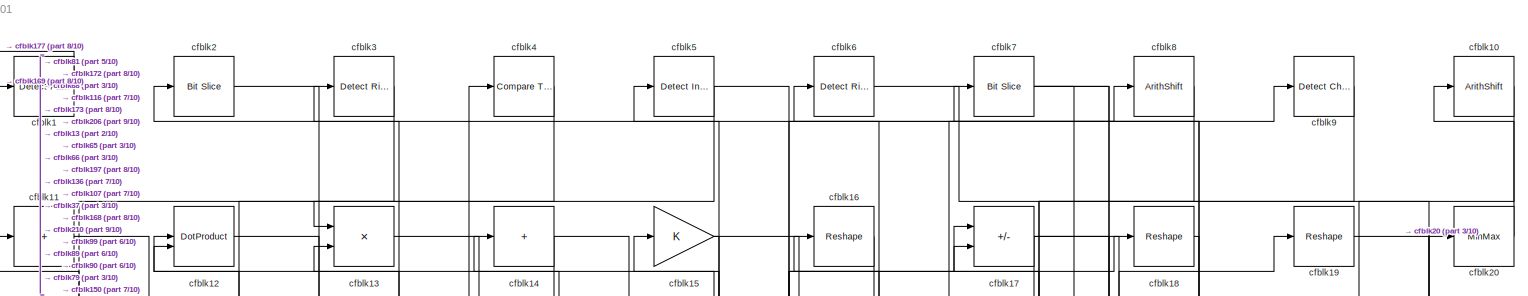
[diagram: root canvas - part 1/10, full width, top band]
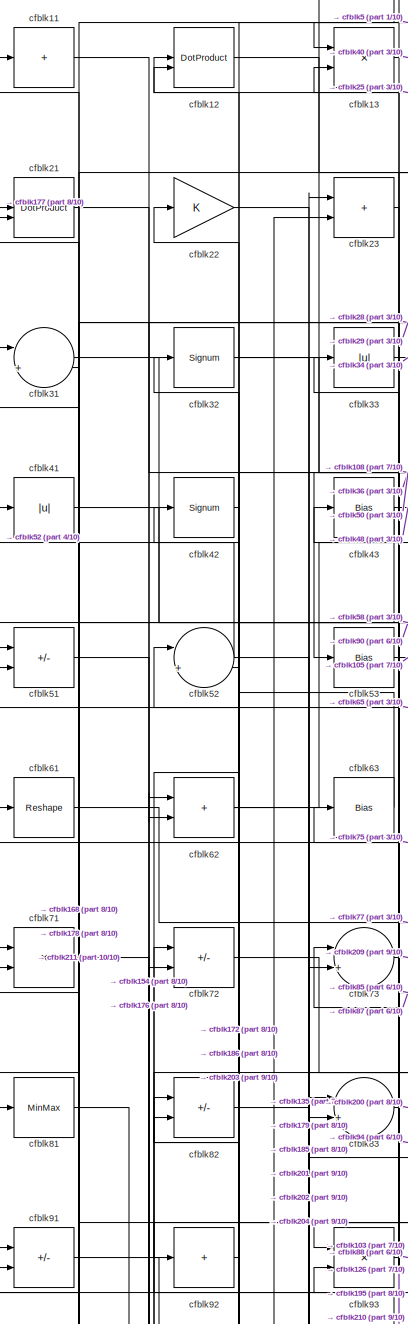
[diagram: root canvas - part 2/10, top left region]
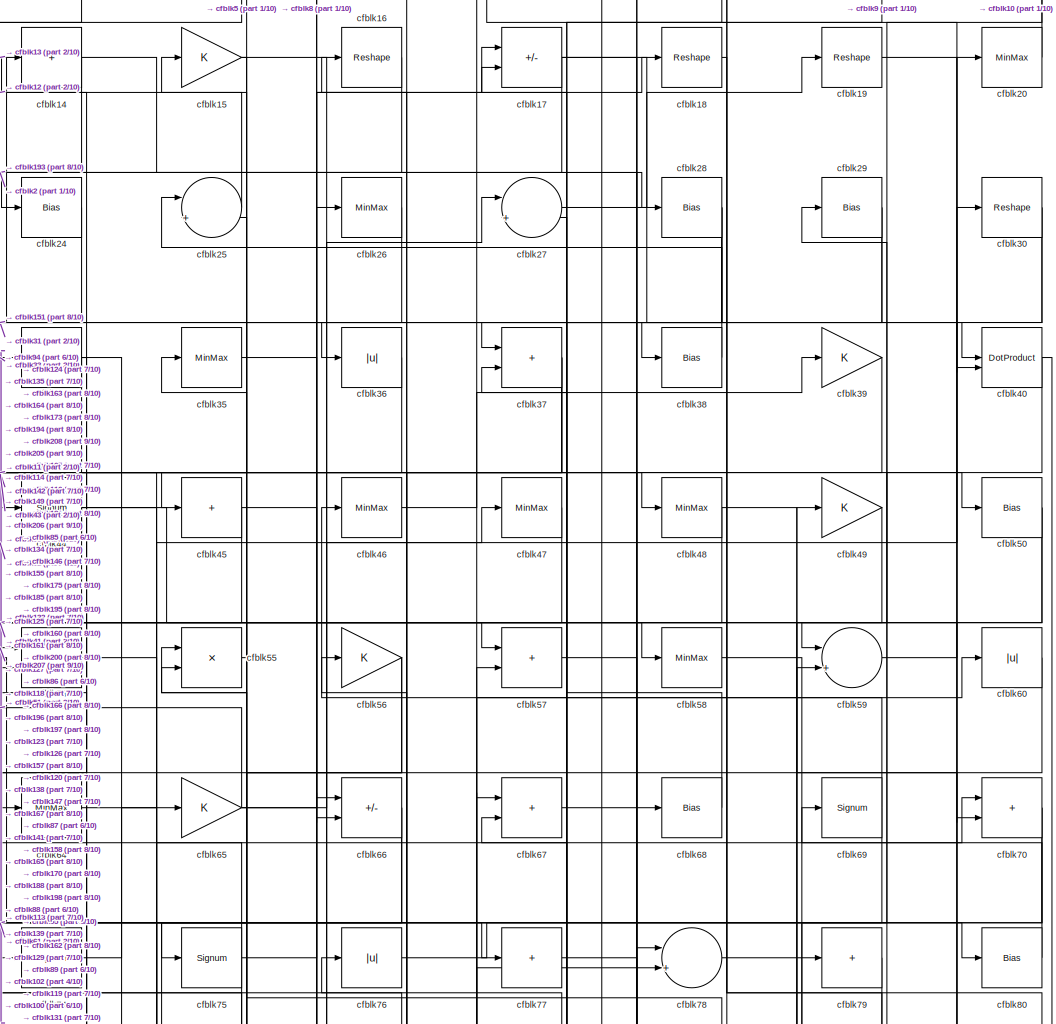
[diagram: root canvas - part 3/10, top center region]
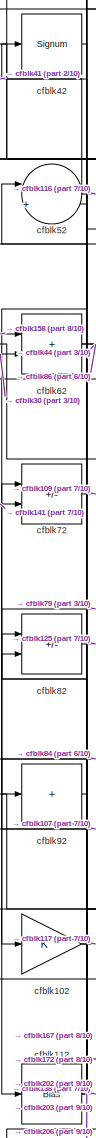
[diagram: root canvas - part 4/10, middle left region]
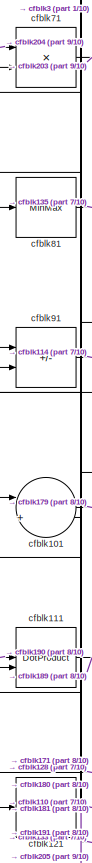
[diagram: root canvas - part 5/10, middle left region]
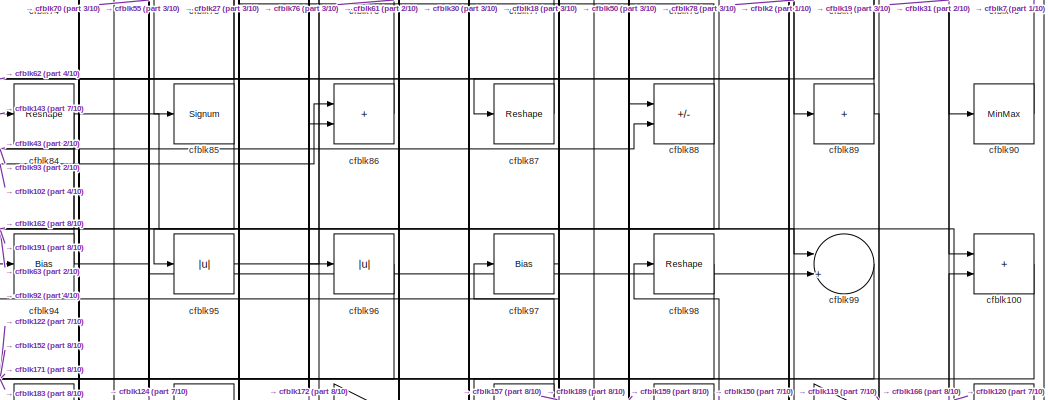
[diagram: root canvas - part 6/10, central region]
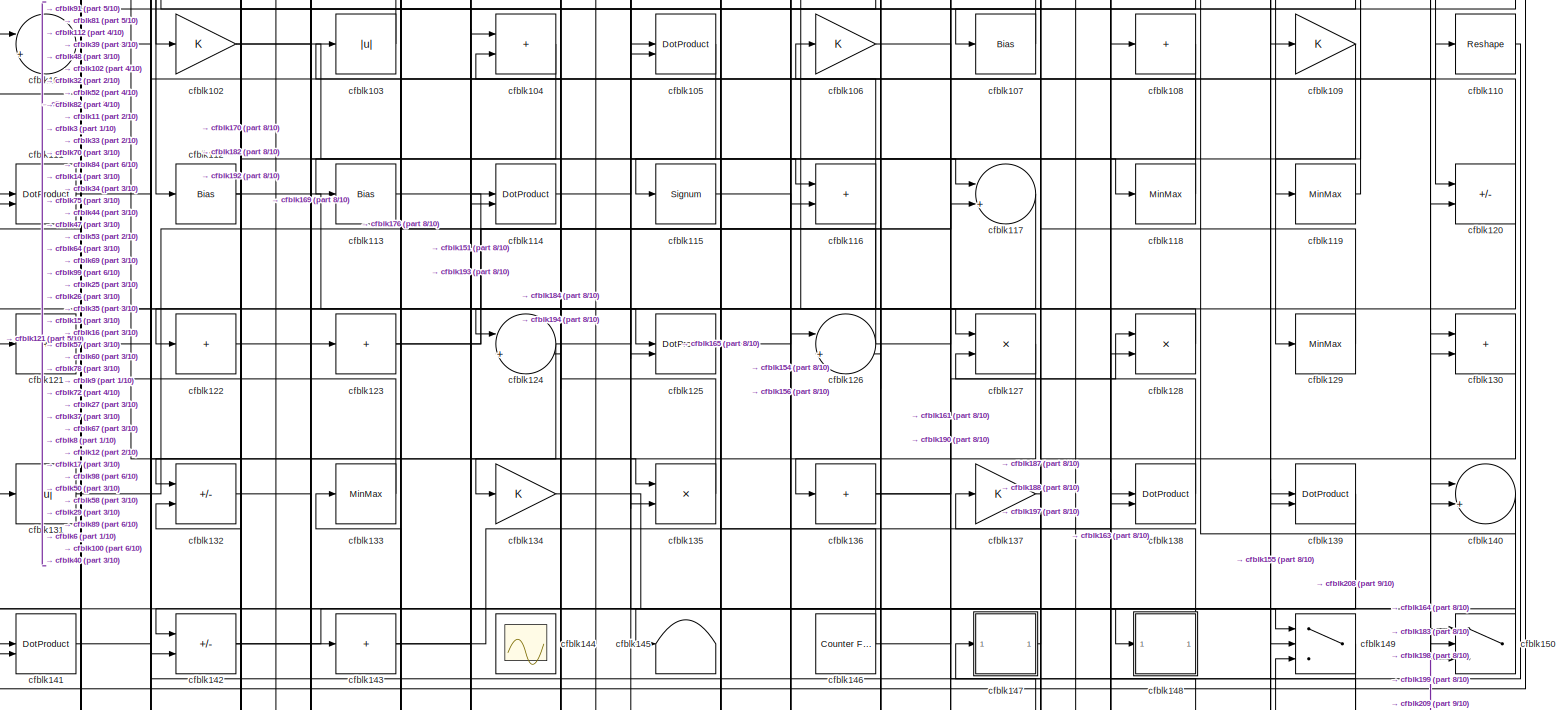
[diagram: root canvas - part 7/10, full width, middle band]
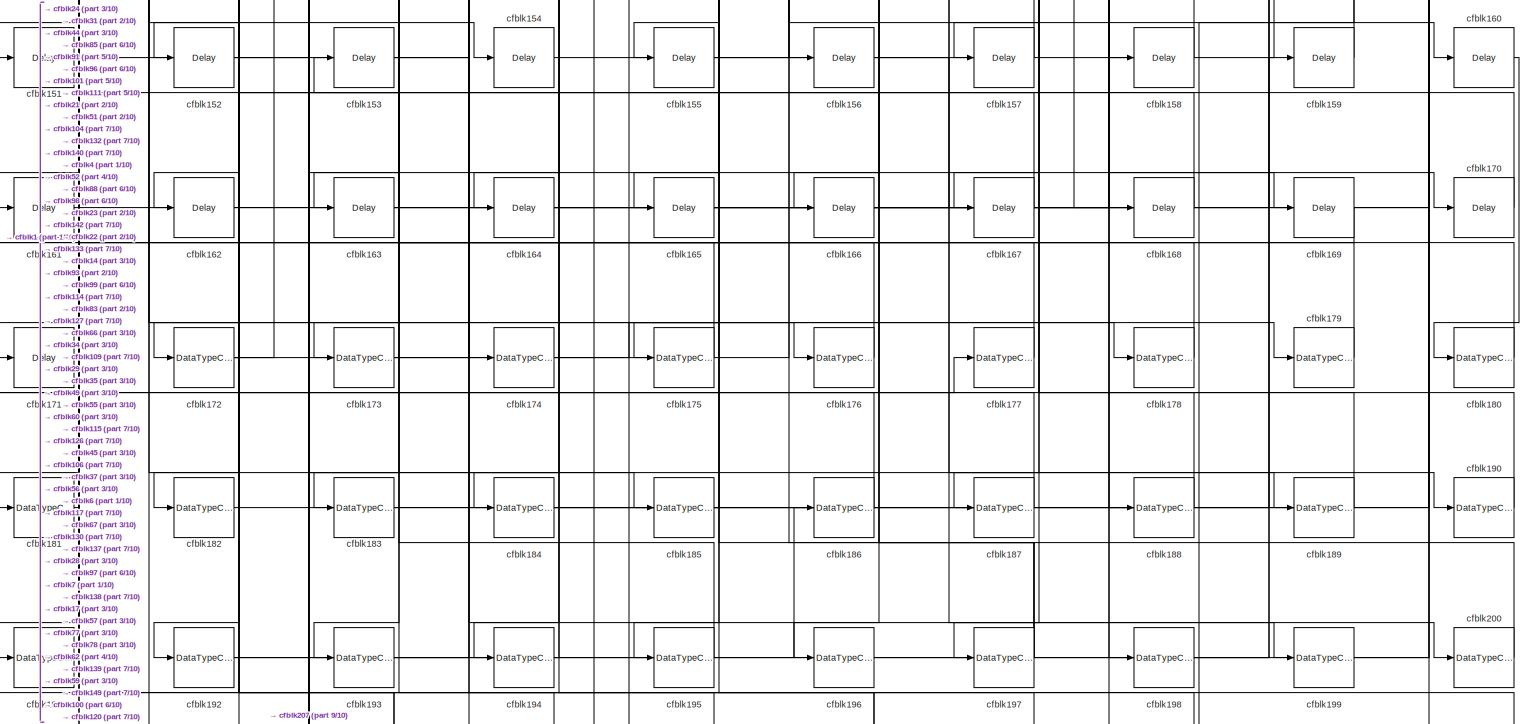
[diagram: root canvas - part 8/10, full width, bottom band]
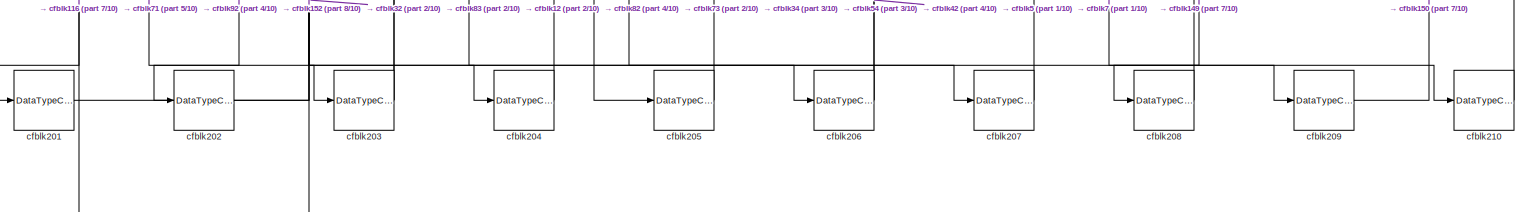
[diagram: root canvas - part 9/10, full width, bottom band]
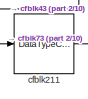
[diagram: root canvas - part 10/10, bottom left region]
MODEL slx_e418ec370b01
KIND model
CONFIG AbsTol = auto
CONFIG EnableMultiTasking = off
CONFIG FixedStep = auto
CONFIG MaxStep = auto
CONFIG MinStep = auto
CONFIG RelTol = 1e-3
CONFIG SampleTimeConstraint = Unconstrained
CONFIG SolverName = VariableStepAuto
CONFIG StartTime = 0.0
CONFIG StopTime = 10.0
BLOCK [Reference] cfblk1  REF=hdlsllib/Logic and Bit
Operations/Detect Fall
Nonpositive
  SourceBlock = hdlsllib/Logic and Bit\nOperations/Detect Fall\nNonpositive
  SourceType = Detect Fall Nonpositive
BLOCK [ArithShift] cfblk10
  BitShiftNumber = 8
  InputPortMap = u0
BLOCK [Sum] cfblk100
  IconShape = rectangular
BLOCK [Sum] cfblk101
  Inputs = |++
BLOCK [Gain] cfblk102
BLOCK [Abs] cfblk103
  SaturateOnIntegerOverflow = off
BLOCK [Sum] cfblk104
  IconShape = rectangular
BLOCK [DotProduct] cfblk105
  OutDataTypeStr = Inherit: Inherit via internal rule
BLOCK [Gain] cfblk106
BLOCK [Bias] cfblk107
  Bias = 0.0
  SaturateOnIntegerOverflow = off
BLOCK [Sum] cfblk108
  IconShape = rectangular
  Inputs = +
BLOCK [Gain] cfblk109
BLOCK [Sum] cfblk11
  IconShape = rectangular
  Inputs = +
BLOCK [Reshape] cfblk110
BLOCK [DotProduct] cfblk111
  OutDataTypeStr = Inherit: Inherit via internal rule
BLOCK [Bias] cfblk112
  Bias = 0.0
  SaturateOnIntegerOverflow = off
BLOCK [Bias] cfblk113
  Bias = 0.0
  SaturateOnIntegerOverflow = off
BLOCK [DotProduct] cfblk114
  OutDataTypeStr = Inherit: Inherit via internal rule
BLOCK [Signum] cfblk115
BLOCK [Sum] cfblk116
  IconShape = rectangular
BLOCK [Sum] cfblk117
  Inputs = |++
BLOCK [MinMax] cfblk118
BLOCK [MinMax] cfblk119
BLOCK [DotProduct] cfblk12
  OutDataTypeStr = Inherit: Inherit via internal rule
BLOCK [Sum] cfblk120
  IconShape = rectangular
  Inputs = +-
BLOCK [Sum] cfblk121
  IconShape = rectangular
  Inputs = +
BLOCK [Sum] cfblk122
  IconShape = rectangular
  Inputs = +
BLOCK [Sum] cfblk123
  IconShape = rectangular
  Inputs = +
BLOCK [Sum] cfblk124
  Inputs = |++
BLOCK [DotProduct] cfblk125
  OutDataTypeStr = Inherit: Inherit via internal rule
BLOCK [Sum] cfblk126
  Inputs = |++
BLOCK [Product] cfblk127
  Inputs = */
  RndMeth = Zero
  SaturateOnIntegerOverflow = on
BLOCK [Product] cfblk128
  Inputs = */
  RndMeth = Zero
  SaturateOnIntegerOverflow = on
BLOCK [MinMax] cfblk129
BLOCK [Product] cfblk13
  Inputs = */
  RndMeth = Zero
  SaturateOnIntegerOverflow = on
BLOCK [Sum] cfblk130
  IconShape = rectangular
BLOCK [Abs] cfblk131
  SaturateOnIntegerOverflow = off
BLOCK [Sum] cfblk132
  IconShape = rectangular
  Inputs = +-
BLOCK [MinMax] cfblk133
BLOCK [Gain] cfblk134
BLOCK [Product] cfblk135
  Inputs = */
  RndMeth = Zero
  SaturateOnIntegerOverflow = on
BLOCK [Sum] cfblk136
  IconShape = rectangular
  Inputs = +
BLOCK [Gain] cfblk137
BLOCK [DotProduct] cfblk138
  OutDataTypeStr = Inherit: Inherit via internal rule
BLOCK [DotProduct] cfblk139
  OutDataTypeStr = Inherit: Inherit via internal rule
BLOCK [Sum] cfblk14
  IconShape = rectangular
  Inputs = +
BLOCK [Sum] cfblk140
  Inputs = |++
BLOCK [DotProduct] cfblk141
  OutDataTypeStr = Inherit: Inherit via internal rule
BLOCK [Sum] cfblk142
  IconShape = rectangular
  Inputs = +-
BLOCK [Sum] cfblk143
  IconShape = rectangular
  Inputs = +
BLOCK [Scope] cfblk144
  Floating = on
  NumInputPorts = 1
  ScopeSpecificationString = Simulink.scopes.TimeScopeBlockCfg('CurrentConfiguration', extmgr.ConfigurationSet(extmgr.Configuration('Core','General UI',true,'FigureColor',[0.156862745098039 0.156862745098039 0.156862745098039]),extmgr.Configuration('Core','Source UI',true),extmgr.Configuration('Sources','WiredSimulink',true,'DataLoggingVariableName','ScopeData1','DataLoggingSaveFormat','StructureWithTime','DataLoggingLimitDat...<+2713ch>
BLOCK [Terminator] cfblk145
BLOCK [Reference] cfblk146  REF=hdlsllib/Sources/Counter
Free-Running
  SourceBlock = hdlsllib/Sources/Counter\nFree-Running
  SourceType = Counter Free-Running
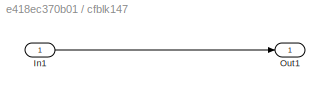
BLOCK [SubSystem] cfblk147
  LibrarySourceBlock = hdlsllib/Ports &\nSubsystems/Subsystem
BLOCK [Inport] cfblk147/In1
BLOCK [Outport] cfblk147/Out1
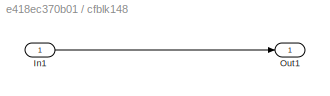
BLOCK [SubSystem] cfblk148
  LibrarySourceBlock = hdlsllib/Ports &\nSubsystems/Subsystem
BLOCK [Inport] cfblk148/In1
BLOCK [Outport] cfblk148/Out1
BLOCK [Switch] cfblk149
  InputSameDT = off
  SaturateOnIntegerOverflow = off
BLOCK [Gain] cfblk15
BLOCK [Switch] cfblk150
  InputSameDT = off
  SaturateOnIntegerOverflow = off
BLOCK [Delay] cfblk151
  InputPortMap = u0
  SampleTime = 1
BLOCK [Delay] cfblk152
  InputPortMap = u0
  SampleTime = 1
BLOCK [Delay] cfblk153
  InputPortMap = u0
  SampleTime = 1
BLOCK [Delay] cfblk154
  InputPortMap = u0
  SampleTime = 1
BLOCK [Delay] cfblk155
  InputPortMap = u0
  SampleTime = 1
BLOCK [Delay] cfblk156
  InputPortMap = u0
  SampleTime = 1
BLOCK [Delay] cfblk157
  InputPortMap = u0
  SampleTime = 1
BLOCK [Delay] cfblk158
  InputPortMap = u0
  SampleTime = 1
BLOCK [Delay] cfblk159
  InputPortMap = u0
  SampleTime = 1
BLOCK [Reshape] cfblk16
BLOCK [Delay] cfblk160
  InputPortMap = u0
  SampleTime = 1
BLOCK [Delay] cfblk161
  InputPortMap = u0
  SampleTime = 1
BLOCK [Delay] cfblk162
  InputPortMap = u0
  SampleTime = 1
BLOCK [Delay] cfblk163
  InputPortMap = u0
  SampleTime = 1
BLOCK [Delay] cfblk164
  InputPortMap = u0
  SampleTime = 1
BLOCK [Delay] cfblk165
  InputPortMap = u0
  SampleTime = 1
BLOCK [Delay] cfblk166
  InputPortMap = u0
  SampleTime = 1
BLOCK [Delay] cfblk167
  InputPortMap = u0
  SampleTime = 1
BLOCK [Delay] cfblk168
  InputPortMap = u0
  SampleTime = 1
BLOCK [Delay] cfblk169
  InputPortMap = u0
  SampleTime = 1
BLOCK [Sum] cfblk17
  IconShape = rectangular
  Inputs = +-
BLOCK [Delay] cfblk170
  InputPortMap = u0
  SampleTime = 1
BLOCK [Delay] cfblk171
  InputPortMap = u0
  SampleTime = 1
BLOCK [DataTypeConversion] cfblk172
  RndMeth = Floor
  SaturateOnIntegerOverflow = off
BLOCK [DataTypeConversion] cfblk173
  OutDataTypeStr = uint8
  RndMeth = Floor
  SaturateOnIntegerOverflow = off
BLOCK [DataTypeConversion] cfblk174
  OutDataTypeStr = uint8
  RndMeth = Floor
  SaturateOnIntegerOverflow = off
BLOCK [DataTypeConversion] cfblk175
  OutDataTypeStr = uint8
  RndMeth = Floor
  SaturateOnIntegerOverflow = off
BLOCK [DataTypeConversion] cfblk176
  OutDataTypeStr = uint8
  RndMeth = Floor
  SaturateOnIntegerOverflow = off
BLOCK [DataTypeConversion] cfblk177
  OutDataTypeStr = uint8
  RndMeth = Floor
  SaturateOnIntegerOverflow = off
BLOCK [DataTypeConversion] cfblk178
  OutDataTypeStr = uint8
  RndMeth = Floor
  SaturateOnIntegerOverflow = off
BLOCK [DataTypeConversion] cfblk179
  OutDataTypeStr = uint8
  RndMeth = Floor
  SaturateOnIntegerOverflow = off
BLOCK [Reshape] cfblk18
BLOCK [DataTypeConversion] cfblk180
  OutDataTypeStr = uint8
  RndMeth = Floor
  SaturateOnIntegerOverflow = off
BLOCK [DataTypeConversion] cfblk181
  OutDataTypeStr = uint8
  RndMeth = Floor
  SaturateOnIntegerOverflow = off
BLOCK [DataTypeConversion] cfblk182
  OutDataTypeStr = uint8
  RndMeth = Floor
  SaturateOnIntegerOverflow = off
BLOCK [DataTypeConversion] cfblk183
  OutDataTypeStr = uint8
  RndMeth = Floor
  SaturateOnIntegerOverflow = off
BLOCK [DataTypeConversion] cfblk184
  OutDataTypeStr = uint8
  RndMeth = Floor
  SaturateOnIntegerOverflow = off
BLOCK [DataTypeConversion] cfblk185
  OutDataTypeStr = uint8
  RndMeth = Floor
  SaturateOnIntegerOverflow = off
BLOCK [DataTypeConversion] cfblk186
  OutDataTypeStr = uint8
  RndMeth = Floor
  SaturateOnIntegerOverflow = off
BLOCK [DataTypeConversion] cfblk187
  OutDataTypeStr = uint8
  RndMeth = Floor
  SaturateOnIntegerOverflow = off
BLOCK [DataTypeConversion] cfblk188
  OutDataTypeStr = uint8
  RndMeth = Floor
  SaturateOnIntegerOverflow = off
BLOCK [DataTypeConversion] cfblk189
  OutDataTypeStr = uint8
  RndMeth = Floor
  SaturateOnIntegerOverflow = off
BLOCK [Reshape] cfblk19
BLOCK [DataTypeConversion] cfblk190
  OutDataTypeStr = uint8
  RndMeth = Floor
  SaturateOnIntegerOverflow = off
BLOCK [DataTypeConversion] cfblk191
  OutDataTypeStr = uint8
  RndMeth = Floor
  SaturateOnIntegerOverflow = off
BLOCK [DataTypeConversion] cfblk192
  RndMeth = Floor
  SaturateOnIntegerOverflow = off
BLOCK [DataTypeConversion] cfblk193
  OutDataTypeStr = uint8
  RndMeth = Floor
  SaturateOnIntegerOverflow = off
BLOCK [DataTypeConversion] cfblk194
  OutDataTypeStr = uint8
  RndMeth = Floor
  SaturateOnIntegerOverflow = off
BLOCK [DataTypeConversion] cfblk195
  OutDataTypeStr = uint8
  RndMeth = Floor
  SaturateOnIntegerOverflow = off
BLOCK [DataTypeConversion] cfblk196
  OutDataTypeStr = uint8
  RndMeth = Floor
  SaturateOnIntegerOverflow = off
BLOCK [DataTypeConversion] cfblk197
  RndMeth = Floor
  SaturateOnIntegerOverflow = off
BLOCK [DataTypeConversion] cfblk198
  OutDataTypeStr = uint8
  RndMeth = Floor
  SaturateOnIntegerOverflow = off
BLOCK [DataTypeConversion] cfblk199
  OutDataTypeStr = uint8
  RndMeth = Floor
  SaturateOnIntegerOverflow = off
BLOCK [Reference] cfblk2  REF=hdlsllib/Logic and Bit
Operations/Bit Slice
  SourceBlock = hdlsllib/Logic and Bit\nOperations/Bit Slice
  SourceType = Bit Slice
BLOCK [MinMax] cfblk20
BLOCK [DataTypeConversion] cfblk200
  OutDataTypeStr = uint8
  RndMeth = Floor
  SaturateOnIntegerOverflow = off
BLOCK [DataTypeConversion] cfblk201
  OutDataTypeStr = uint8
  RndMeth = Floor
  SaturateOnIntegerOverflow = off
BLOCK [DataTypeConversion] cfblk202
  OutDataTypeStr = uint8
  RndMeth = Floor
  SaturateOnIntegerOverflow = off
BLOCK [DataTypeConversion] cfblk203
  RndMeth = Floor
  SaturateOnIntegerOverflow = off
BLOCK [DataTypeConversion] cfblk204
  OutDataTypeStr = uint8
  RndMeth = Floor
  SaturateOnIntegerOverflow = off
BLOCK [DataTypeConversion] cfblk205
  OutDataTypeStr = uint8
  RndMeth = Floor
  SaturateOnIntegerOverflow = off
BLOCK [DataTypeConversion] cfblk206
  RndMeth = Floor
  SaturateOnIntegerOverflow = off
BLOCK [DataTypeConversion] cfblk207
  OutDataTypeStr = uint8
  RndMeth = Floor
  SaturateOnIntegerOverflow = off
BLOCK [DataTypeConversion] cfblk208
  OutDataTypeStr = uint8
  RndMeth = Floor
  SaturateOnIntegerOverflow = off
BLOCK [DataTypeConversion] cfblk209
  OutDataTypeStr = uint8
  RndMeth = Floor
  SaturateOnIntegerOverflow = off
BLOCK [DotProduct] cfblk21
  OutDataTypeStr = Inherit: Inherit via internal rule
BLOCK [DataTypeConversion] cfblk210
  OutDataTypeStr = uint8
  RndMeth = Floor
  SaturateOnIntegerOverflow = off
BLOCK [DataTypeConversion] cfblk211
  OutDataTypeStr = uint8
  RndMeth = Floor
  SaturateOnIntegerOverflow = off
BLOCK [Gain] cfblk22
BLOCK [Sum] cfblk23
  IconShape = rectangular
BLOCK [Bias] cfblk24
  Bias = 0.0
  SaturateOnIntegerOverflow = off
BLOCK [Sum] cfblk25
  Inputs = |++
BLOCK [MinMax] cfblk26
BLOCK [Sum] cfblk27
  Inputs = |++
BLOCK [Bias] cfblk28
  Bias = 0.0
  SaturateOnIntegerOverflow = off
BLOCK [Bias] cfblk29
  Bias = 0.0
  SaturateOnIntegerOverflow = off
BLOCK [Reference] cfblk3  REF=hdlsllib/Logic and Bit
Operations/Detect Rise
Positive
  SourceBlock = hdlsllib/Logic and Bit\nOperations/Detect Rise\nPositive
  SourceType = Detect Rise Positive
BLOCK [Reshape] cfblk30
BLOCK [Sum] cfblk31
  Inputs = |++
BLOCK [Signum] cfblk32
BLOCK [Abs] cfblk33
  SaturateOnIntegerOverflow = off
BLOCK [Sum] cfblk34
  IconShape = rectangular
  Inputs = +
BLOCK [MinMax] cfblk35
BLOCK [Abs] cfblk36
  SaturateOnIntegerOverflow = off
BLOCK [Sum] cfblk37
  IconShape = rectangular
BLOCK [Bias] cfblk38
  Bias = 0.0
  SaturateOnIntegerOverflow = off
BLOCK [Gain] cfblk39
BLOCK [Reference] cfblk4  REF=hdlsllib/Logic and Bit
Operations/Compare
To Zero
  SourceBlock = hdlsllib/Logic and Bit\nOperations/Compare\nTo Zero
  SourceType = Compare To Zero
BLOCK [DotProduct] cfblk40
  OutDataTypeStr = Inherit: Inherit via internal rule
BLOCK [Abs] cfblk41
  SaturateOnIntegerOverflow = off
BLOCK [Signum] cfblk42
BLOCK [Bias] cfblk43
  Bias = 0.0
  SaturateOnIntegerOverflow = off
BLOCK [Signum] cfblk44
BLOCK [Sum] cfblk45
  IconShape = rectangular
  Inputs = +
BLOCK [MinMax] cfblk46
BLOCK [MinMax] cfblk47
BLOCK [MinMax] cfblk48
BLOCK [Gain] cfblk49
BLOCK [Reference] cfblk5  REF=simulink/Logic and Bit
Operations/Detect
Increase
  LibrarySourceBlock = hdlsllib/Logic and Bit\nOperations/Detect\nIncrease
  SourceBlock = simulink/Logic and Bit\nOperations/Detect\nIncrease
  SourceType = Detect Increase
BLOCK [Bias] cfblk50
  Bias = 0.0
  SaturateOnIntegerOverflow = off
BLOCK [Sum] cfblk51
  IconShape = rectangular
  Inputs = +-
BLOCK [Sum] cfblk52
  Inputs = |++
BLOCK [Bias] cfblk53
  Bias = 0.0
  SaturateOnIntegerOverflow = off
BLOCK [Sum] cfblk54
  IconShape = rectangular
BLOCK [Product] cfblk55
  Inputs = */
  RndMeth = Zero
  SaturateOnIntegerOverflow = on
BLOCK [Gain] cfblk56
BLOCK [Sum] cfblk57
  IconShape = rectangular
BLOCK [MinMax] cfblk58
BLOCK [Sum] cfblk59
  Inputs = |++
BLOCK [Reference] cfblk6  REF=hdlsllib/Logic and Bit
Operations/Detect Rise
Nonnegative
  SourceBlock = hdlsllib/Logic and Bit\nOperations/Detect Rise\nNonnegative
  SourceType = Detect Rise Nonnegative
BLOCK [Abs] cfblk60
  SaturateOnIntegerOverflow = off
BLOCK [Reshape] cfblk61
BLOCK [Sum] cfblk62
  IconShape = rectangular
BLOCK [Bias] cfblk63
  Bias = 0.0
  SaturateOnIntegerOverflow = off
BLOCK [MinMax] cfblk64
BLOCK [Gain] cfblk65
BLOCK [Sum] cfblk66
  IconShape = rectangular
  Inputs = +-
BLOCK [Sum] cfblk67
  IconShape = rectangular
BLOCK [Bias] cfblk68
  Bias = 0.0
  SaturateOnIntegerOverflow = off
BLOCK [Signum] cfblk69
BLOCK [Reference] cfblk7  REF=hdlsllib/Logic and Bit
Operations/Bit Slice
  SourceBlock = hdlsllib/Logic and Bit\nOperations/Bit Slice
  SourceType = Bit Slice
BLOCK [Sum] cfblk70
  IconShape = rectangular
BLOCK [Product] cfblk71
  Inputs = */
  RndMeth = Zero
  SaturateOnIntegerOverflow = on
BLOCK [Sum] cfblk72
  IconShape = rectangular
  Inputs = +-
BLOCK [Sum] cfblk73
  Inputs = |++
BLOCK [Signum] cfblk74
BLOCK [Signum] cfblk75
BLOCK [Abs] cfblk76
  SaturateOnIntegerOverflow = off
BLOCK [Sum] cfblk77
  IconShape = rectangular
  Inputs = +
BLOCK [Sum] cfblk78
  Inputs = |++
BLOCK [Sum] cfblk79
  IconShape = rectangular
  Inputs = +
BLOCK [ArithShift] cfblk8
  BitShiftNumber = 8
  InputPortMap = u0
BLOCK [Bias] cfblk80
  Bias = 0.0
  SaturateOnIntegerOverflow = off
BLOCK [MinMax] cfblk81
BLOCK [Sum] cfblk82
  IconShape = rectangular
  Inputs = +-
BLOCK [Sum] cfblk83
  Inputs = |++
BLOCK [Reshape] cfblk84
BLOCK [Signum] cfblk85
BLOCK [Sum] cfblk86
  IconShape = rectangular
BLOCK [Reshape] cfblk87
BLOCK [Sum] cfblk88
  IconShape = rectangular
  Inputs = +-
BLOCK [Sum] cfblk89
  IconShape = rectangular
  Inputs = +
BLOCK [Reference] cfblk9  REF=simulink/Logic and Bit
Operations/Detect
Change
  LibrarySourceBlock = hdlsllib/Logic and Bit\nOperations/Detect\nChange
  SourceBlock = simulink/Logic and Bit\nOperations/Detect\nChange
  SourceType = Detect Change
BLOCK [MinMax] cfblk90
BLOCK [Sum] cfblk91
  IconShape = rectangular
  Inputs = +-
BLOCK [Sum] cfblk92
  IconShape = rectangular
  Inputs = +
BLOCK [Product] cfblk93
  Inputs = */
  RndMeth = Zero
  SaturateOnIntegerOverflow = on
BLOCK [Bias] cfblk94
  Bias = 0.0
  SaturateOnIntegerOverflow = off
BLOCK [Abs] cfblk95
  SaturateOnIntegerOverflow = off
BLOCK [Abs] cfblk96
  SaturateOnIntegerOverflow = off
BLOCK [Bias] cfblk97
  Bias = 0.0
  SaturateOnIntegerOverflow = off
BLOCK [Reshape] cfblk98
BLOCK [Sum] cfblk99
  Inputs = |++
LINE cfblk100:1 -> cfblk122:1
LINE cfblk101:1 -> cfblk179:1
NET cfblk102:1 -> cfblk117:1, cfblk86:1
LINE cfblk103:1 -> cfblk11:1
LINE cfblk104:1 -> cfblk192:1
LINE cfblk105:1 -> cfblk115:1
LINE cfblk106:1 -> cfblk190:1
LINE cfblk107:1 -> cfblk72:1
LINE cfblk108:1 -> cfblk136:1
LINE cfblk109:1 -> cfblk165:1
LINE cfblk10:1 -> cfblk79:1
LINE cfblk110:1 -> cfblk147:1
LINE cfblk111:1 -> cfblk189:1
NET cfblk112:1 -> cfblk138:2, cfblk82:1
LINE cfblk113:1 -> cfblk125:2
LINE cfblk114:1 -> cfblk47:1
LINE cfblk115:1 -> cfblk156:1
NET cfblk116:1 -> cfblk201:1, cfblk3:1
LINE cfblk117:1 -> cfblk126:2
LINE cfblk118:1 -> cfblk16:1
LINE cfblk119:1 -> cfblk29:1
LINE cfblk11:1 -> cfblk50:1
NET cfblk120:1 -> cfblk124:2, cfblk27:2
LINE cfblk121:1 -> cfblk110:1
LINE cfblk122:1 -> cfblk123:1
NET cfblk123:1 -> cfblk57:2, cfblk78:2
NET cfblk124:1 -> cfblk142:2, cfblk99:2
LINE cfblk125:1 -> cfblk17:2
NET cfblk126:1 -> cfblk33:1, cfblk60:1
LINE cfblk127:1 -> cfblk184:1
LINE cfblk128:1 -> cfblk121:1
LINE cfblk129:1 -> cfblk103:1
LINE cfblk12:1 -> cfblk108:1
LINE cfblk130:1 -> cfblk197:1
LINE cfblk131:1 -> cfblk26:1
LINE cfblk132:1 -> cfblk143:1
LINE cfblk133:1 -> cfblk91:1
LINE cfblk134:1 -> cfblk148:1
LINE cfblk135:1 -> cfblk14:1
NET cfblk136:1 -> cfblk128:1, cfblk9:1
LINE cfblk137:1 -> cfblk187:1
LINE cfblk138:1 -> cfblk67:2
NET cfblk139:1 -> cfblk141:2, cfblk145:1
LINE cfblk13:1 -> cfblk40:1
LINE cfblk140:1 -> cfblk182:1
LINE cfblk141:1 -> cfblk72:2
NET cfblk142:1 -> cfblk150:2, cfblk169:1
NET cfblk143:1 -> cfblk128:2, cfblk84:1
NET cfblk146:1 -> cfblk149:2, cfblk25:2
LINE cfblk147/In1:1 -> cfblk147/Out1:1
LINE cfblk147:1 -> cfblk37:2
LINE cfblk148/In1:1 -> cfblk148/Out1:1
LINE cfblk148:1 -> cfblk127:2
LINE cfblk149:1 -> cfblk208:1
NET cfblk14:1 -> cfblk193:1, cfblk28:1
LINE cfblk150:1 -> cfblk98:1
LINE cfblk151:1 -> cfblk114:2
LINE cfblk152:1 -> cfblk207:1
LINE cfblk153:1 -> cfblk174:1
LINE cfblk154:1 -> cfblk126:1
LINE cfblk155:1 -> cfblk149:3
LINE cfblk156:1 -> cfblk199:1
LINE cfblk157:1 -> cfblk67:1
LINE cfblk158:1 -> cfblk62:1
LINE cfblk159:1 -> cfblk88:1
NET cfblk15:1 -> cfblk127:1, cfblk45:1
LINE cfblk160:1 -> cfblk180:1
LINE cfblk161:1 -> cfblk117:2
LINE cfblk162:1 -> cfblk59:2
LINE cfblk163:1 -> cfblk138:1
LINE cfblk164:1 -> cfblk120:2
LINE cfblk165:1 -> cfblk78:1
LINE cfblk166:1 -> cfblk100:2
LINE cfblk167:1 -> cfblk52:2
LINE cfblk168:1 -> cfblk31:1
LINE cfblk169:1 -> cfblk1:1
LINE cfblk16:1 -> cfblk24:1
LINE cfblk170:1 -> cfblk132:2
LINE cfblk171:1 -> cfblk91:2
NET cfblk172:1 -> cfblk23:2, cfblk52:1, cfblk96:1
LINE cfblk173:1 -> cfblk4:1
LINE cfblk174:1 -> cfblk178:1
LINE cfblk175:1 -> cfblk153:1
LINE cfblk176:1 -> cfblk133:1
LINE cfblk177:1 -> cfblk21:1
LINE cfblk178:1 -> cfblk21:2
LINE cfblk179:1 -> cfblk23:1
NET cfblk17:1 -> cfblk141:1, cfblk170:1, cfblk40:2
LINE cfblk180:1 -> cfblk101:1
LINE cfblk181:1 -> cfblk101:2
LINE cfblk182:1 -> cfblk159:1
LINE cfblk183:1 -> cfblk140:1
LINE cfblk184:1 -> cfblk140:2
LINE cfblk185:1 -> cfblk55:2
LINE cfblk186:1 -> cfblk22:1
LINE cfblk187:1 -> cfblk106:1
LINE cfblk188:1 -> cfblk137:1
LINE cfblk189:1 -> cfblk97:1
LINE cfblk18:1 -> cfblk95:1
LINE cfblk190:1 -> cfblk111:1
LINE cfblk191:1 -> cfblk111:2
NET cfblk192:1 -> cfblk139:1, cfblk186:1
LINE cfblk193:1 -> cfblk104:1
LINE cfblk194:1 -> cfblk104:2
LINE cfblk195:1 -> cfblk93:2
LINE cfblk196:1 -> cfblk49:1
NET cfblk197:1 -> cfblk35:1, cfblk56:1, cfblk6:1
LINE cfblk198:1 -> cfblk130:1
LINE cfblk199:1 -> cfblk130:2
LINE cfblk19:1 -> cfblk100:1
LINE cfblk1:1 -> cfblk177:1
LINE cfblk200:1 -> cfblk66:1
LINE cfblk201:1 -> cfblk83:1
LINE cfblk202:1 -> cfblk83:2
NET cfblk203:1 -> cfblk12:2, cfblk82:2
LINE cfblk204:1 -> cfblk71:1
LINE cfblk205:1 -> cfblk71:2
NET cfblk206:1 -> cfblk42:1, cfblk5:1
LINE cfblk207:1 -> cfblk54:1
LINE cfblk208:1 -> cfblk54:2
LINE cfblk209:1 -> cfblk150:1
LINE cfblk20:1 -> cfblk10:1
LINE cfblk210:1 -> cfblk73:1
LINE cfblk211:1 -> cfblk73:2
LINE cfblk21:1 -> cfblk176:1
LINE cfblk22:1 -> cfblk185:1
LINE cfblk23:1 -> cfblk93:1
LINE cfblk24:1 -> cfblk151:1
LINE cfblk25:1 -> cfblk12:1
LINE cfblk26:1 -> cfblk36:1
LINE cfblk27:1 -> cfblk19:1
NET cfblk28:1 -> cfblk167:1, cfblk31:2, cfblk38:1
NET cfblk29:1 -> cfblk155:1, cfblk51:1
LINE cfblk2:1 -> cfblk68:1
NET cfblk30:1 -> cfblk62:2, cfblk87:1
LINE cfblk31:1 -> cfblk90:1
NET cfblk32:1 -> cfblk135:2, cfblk204:1
LINE cfblk33:1 -> cfblk34:1
NET cfblk34:1 -> cfblk124:1, cfblk173:1, cfblk205:1
LINE cfblk35:1 -> cfblk118:1
LINE cfblk36:1 -> cfblk53:1
NET cfblk37:1 -> cfblk166:1, cfblk194:1, cfblk196:1
LINE cfblk38:1 -> cfblk25:1
LINE cfblk39:1 -> cfblk142:1
LINE cfblk3:1 -> cfblk81:1
NET cfblk40:1 -> cfblk131:1, cfblk59:1
LINE cfblk41:1 -> cfblk58:1
LINE cfblk42:1 -> cfblk112:1
NET cfblk43:1 -> cfblk211:1, cfblk48:1
NET cfblk44:1 -> cfblk116:1, cfblk181:1, cfblk57:1
NET cfblk45:1 -> cfblk160:1, cfblk161:1
LINE cfblk46:1 -> cfblk39:1
LINE cfblk47:1 -> cfblk64:1
NET cfblk48:1 -> cfblk132:1, cfblk70:2
LINE cfblk49:1 -> cfblk195:1
LINE cfblk4:1 -> cfblk172:1
NET cfblk50:1 -> cfblk139:2, cfblk94:1
LINE cfblk51:1 -> cfblk154:1
NET cfblk52:1 -> cfblk116:2, cfblk41:1
LINE cfblk53:1 -> cfblk105:1
LINE cfblk54:1 -> cfblk206:1
LINE cfblk55:1 -> cfblk15:1
NET cfblk56:1 -> cfblk74:1, cfblk75:1
LINE cfblk57:1 -> cfblk158:1
LINE cfblk58:1 -> cfblk129:1
LINE cfblk59:1 -> cfblk30:1
NET cfblk5:1 -> cfblk13:1, cfblk66:2
LINE cfblk60:1 -> cfblk175:1
LINE cfblk61:1 -> cfblk77:1
NET cfblk62:1 -> cfblk44:1, cfblk86:2
LINE cfblk63:1 -> cfblk32:1
LINE cfblk64:1 -> cfblk149:1
NET cfblk65:1 -> cfblk20:1, cfblk51:2, cfblk8:1
NET cfblk66:1 -> cfblk163:1, cfblk164:1
LINE cfblk67:1 -> cfblk198:1
LINE cfblk68:1 -> cfblk17:1
NET cfblk69:1 -> cfblk105:2, cfblk46:1
LINE cfblk6:1 -> cfblk150:3
NET cfblk70:1 -> cfblk113:1, cfblk85:1
LINE cfblk71:1 -> cfblk203:1
LINE cfblk72:1 -> cfblk109:1
LINE cfblk73:1 -> cfblk209:1
LINE cfblk74:1 -> cfblk65:1
NET cfblk75:1 -> cfblk134:1, cfblk13:2, cfblk18:1
LINE cfblk76:1 -> cfblk80:1
LINE cfblk77:1 -> cfblk188:1
LINE cfblk78:1 -> cfblk89:1
LINE cfblk79:1 -> cfblk102:1
NET cfblk7:1 -> cfblk168:1, cfblk210:1, cfblk99:1
LINE cfblk80:1 -> cfblk69:1
LINE cfblk81:1 -> cfblk135:1
LINE cfblk82:1 -> cfblk125:1
LINE cfblk83:1 -> cfblk200:1
NET cfblk84:1 -> cfblk120:1, cfblk92:1
NET cfblk85:1 -> cfblk191:1, cfblk63:1
LINE cfblk86:1 -> cfblk76:1
LINE cfblk87:1 -> cfblk61:1
NET cfblk88:1 -> cfblk162:1, cfblk55:1
NET cfblk89:1 -> cfblk119:1, cfblk2:1
LINE cfblk8:1 -> cfblk107:1
LINE cfblk90:1 -> cfblk7:1
LINE cfblk91:1 -> cfblk114:1
LINE cfblk92:1 -> cfblk202:1
LINE cfblk93:1 -> cfblk88:2
NET cfblk94:1 -> cfblk43:1, cfblk70:1
LINE cfblk95:1 -> cfblk27:1
LINE cfblk96:1 -> cfblk171:1
LINE cfblk97:1 -> cfblk157:1
LINE cfblk98:1 -> cfblk152:1
LINE cfblk99:1 -> cfblk183:1
LINE cfblk9:1 -> cfblk37:1
note: NET lines group one-source signal fan-out (src -> all destinations, sorted); 1:1 wires keep LINE
